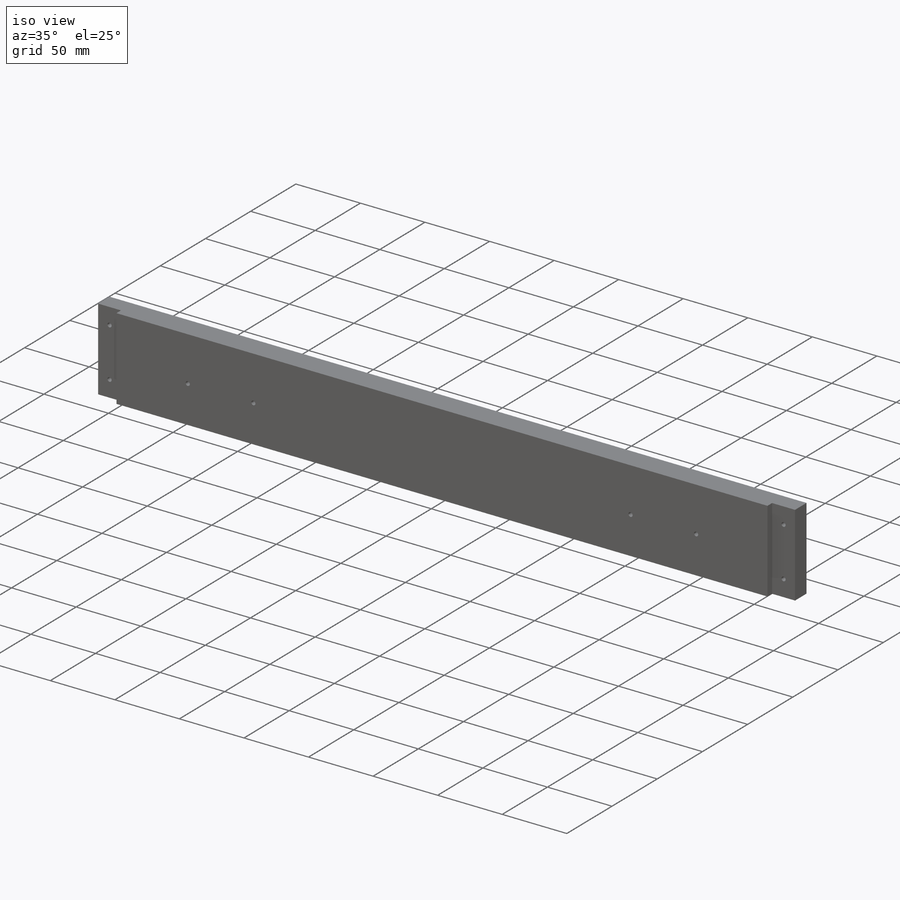
[diagram: iso view]
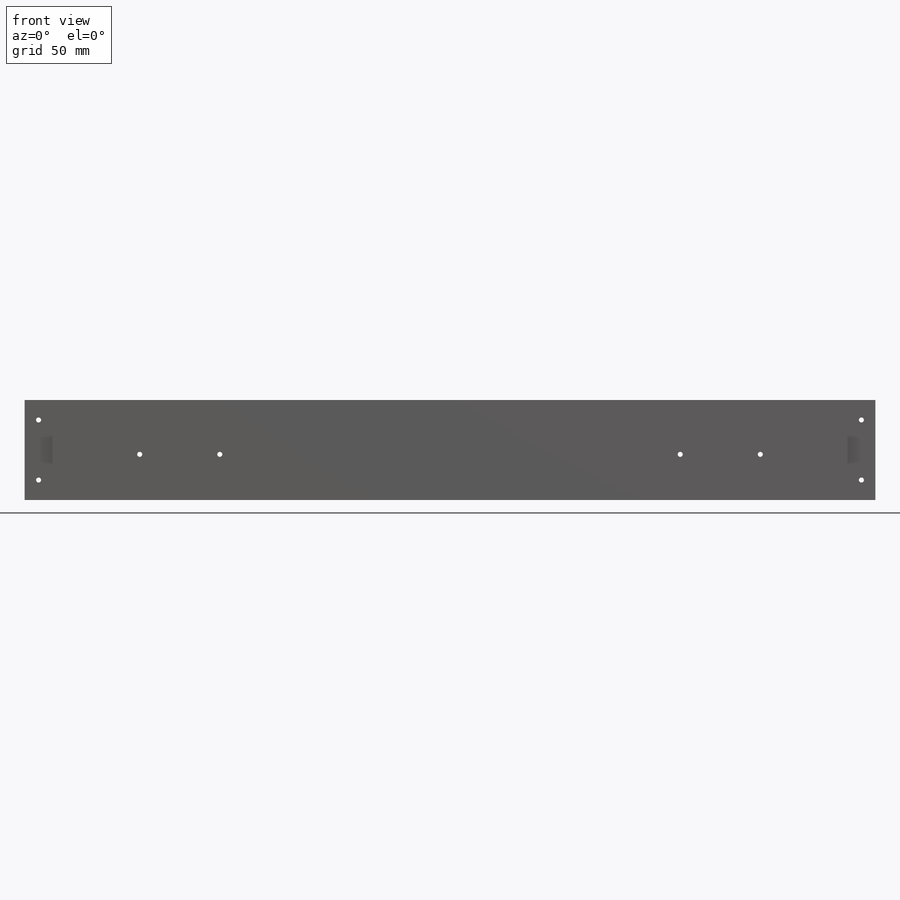
[diagram: front view]
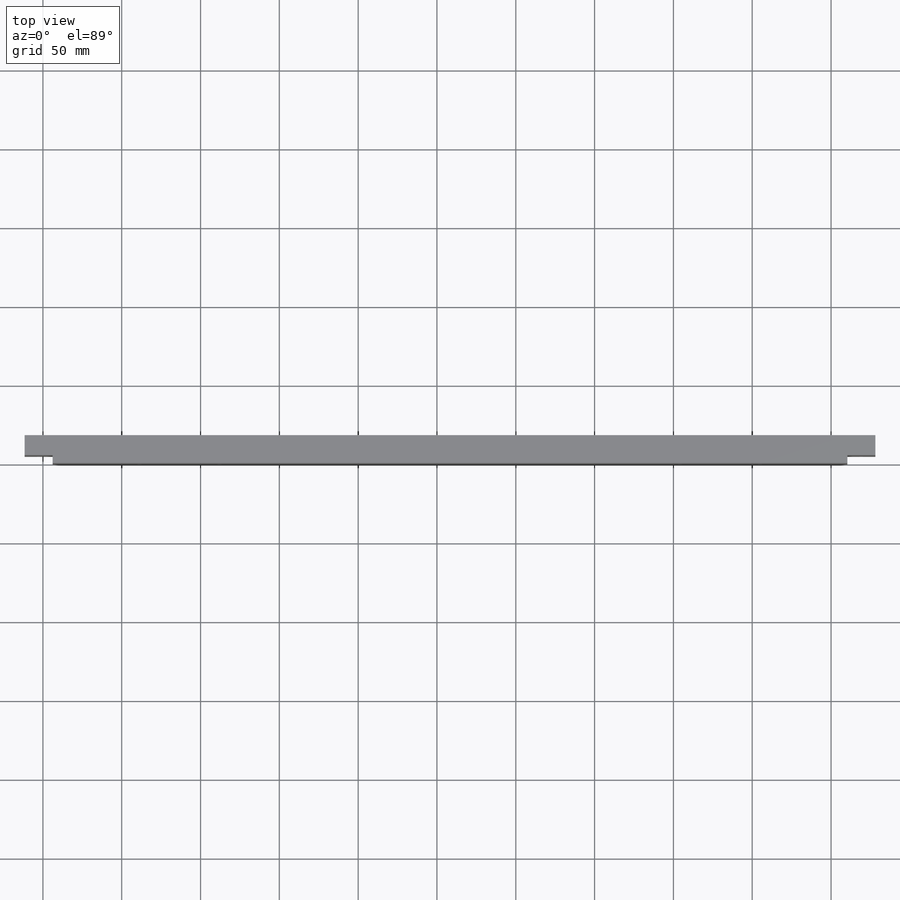
[diagram: top view]
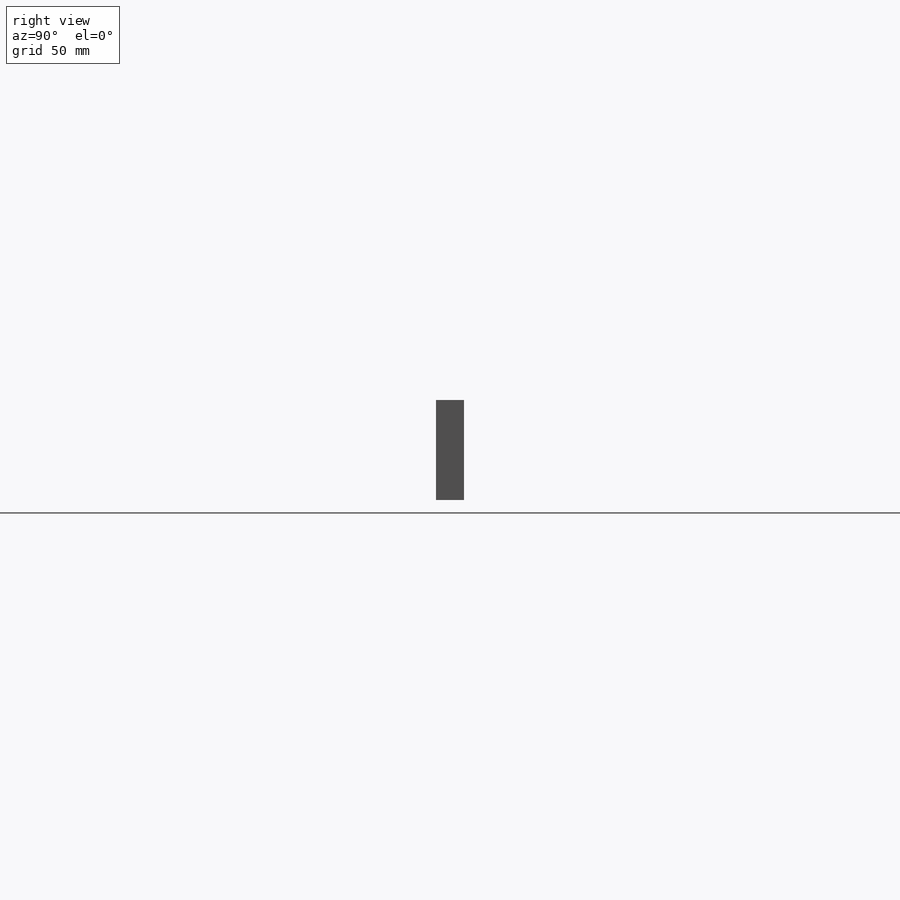
[diagram: right view]
SOLIDWORKS PART (.sldprt)
format: sldprt  version: not decoded by parser v0  size: 556,544 bytes
history: native  units: mm
features: sketch x5, cut_extrude x3, material x1, extrude x1 + 1 further entry (+15 scaffold rows collapsed)
feature tree (26):
  scaffold x15  (default folders/planes/origin — collapsed)
  material  "Pine"
  "Design Table"
  sketch  "Sketch1"
  sketch  "Sketch2"  dims[D1=63.5mm D2=539.75mm]
  extrude  "Extrude1"  Depth=17.78mm
  sketch  "Sketch3"  dims[D1=17.78mm D2=17.78mm]
  cut_extrude  "Cut-Extrude1"  Depth=5.08mm
  sketch  "Sketch4"  dims[D1=38.1mm D2=38.1mm]
  cut_extrude  "Cut-Extrude2"  [1 undecoded]
  sketch  "Sketch5"  dims[D1=~9.034356mm]
  cut_extrude  "Cut-Extrude3"  [1 undecoded]
decode coverage: 6 of 9 modeling features carry decoded parameters; 1 rows unclassified (native names shown)
note: ~ marks probable driven/reference dimensions
note: 2 parameter values undecoded
note: suppression state not decoded; provenance and decode notes live in map.json
